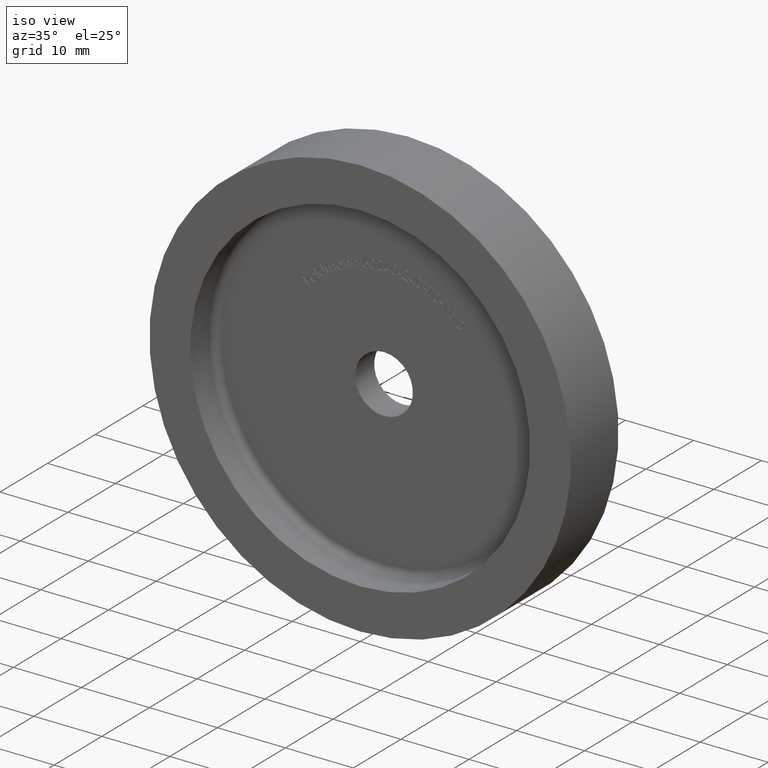
[diagram: clean part render]
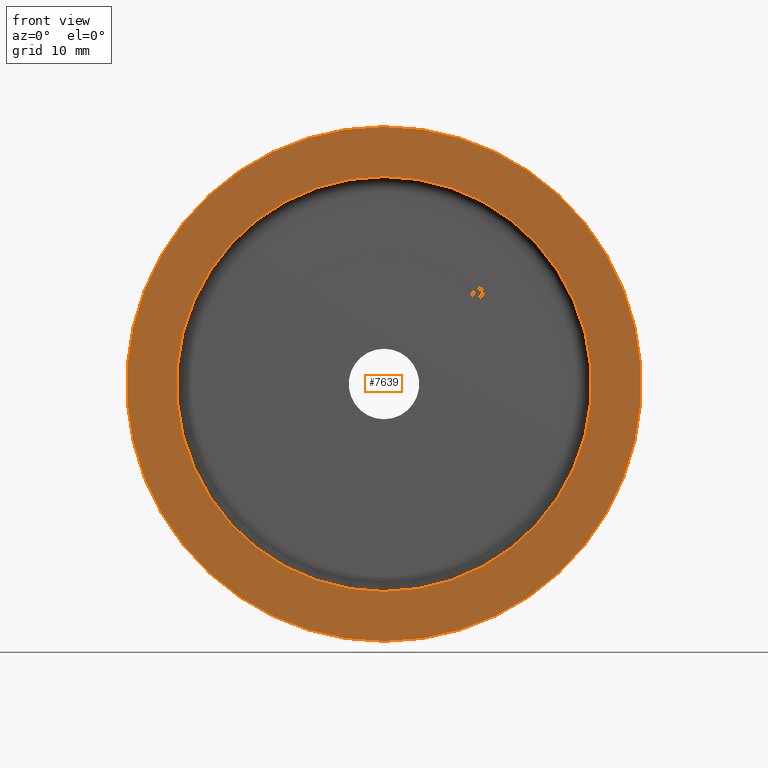
[diagram: tour spotlight — one face highlighted and labeled with its STEP entity id]
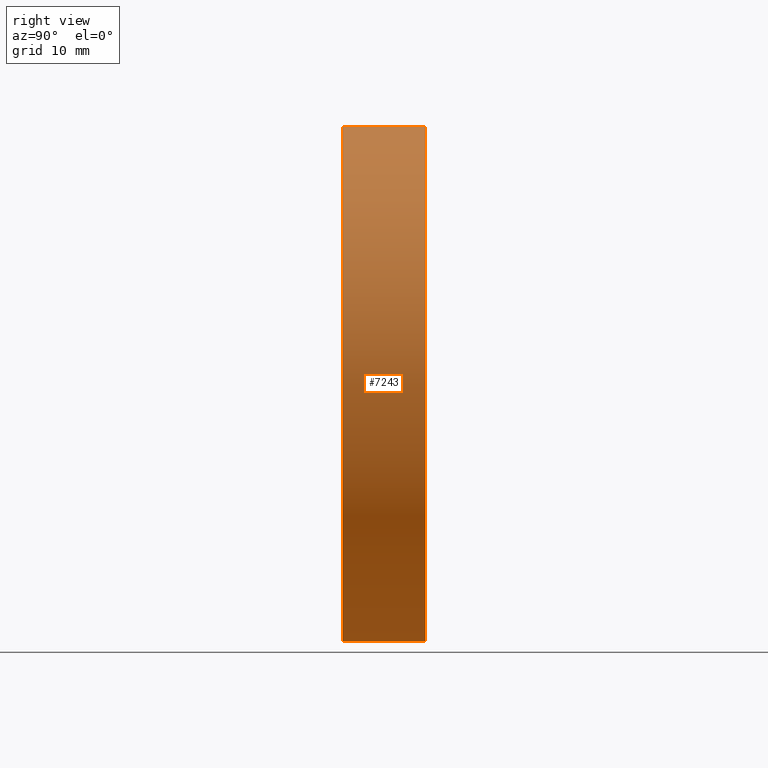
[diagram: tour spotlight — one face highlighted and labeled with its STEP entity id]
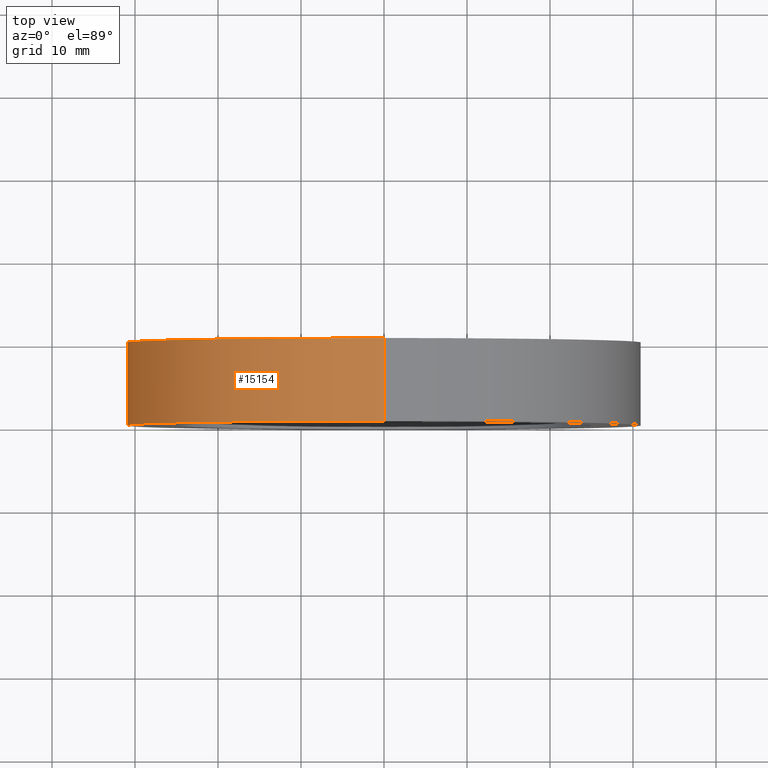
[diagram: tour spotlight — one face highlighted and labeled with its STEP entity id]
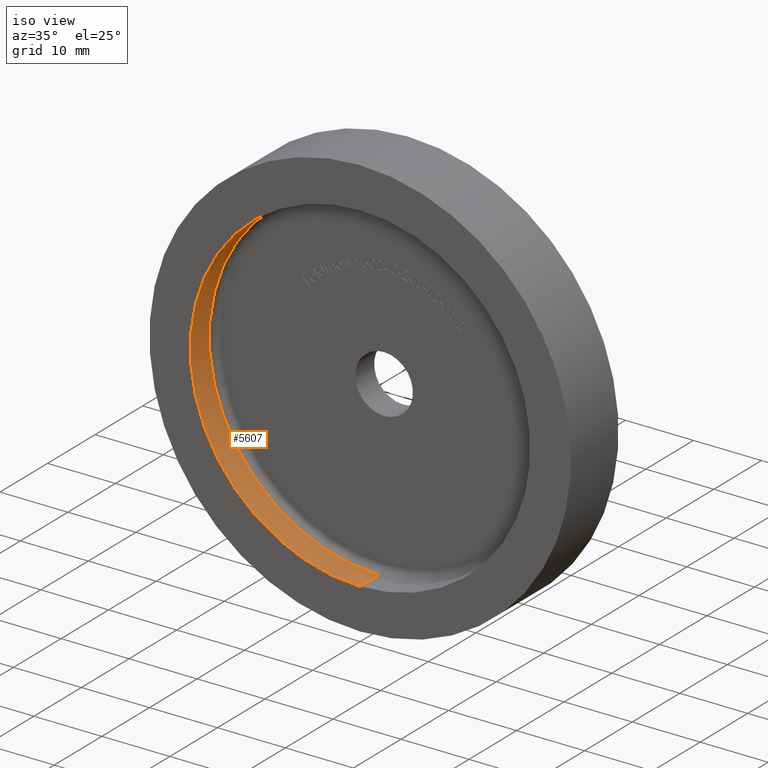
[diagram: tour spotlight — one face highlighted and labeled with its STEP entity id]
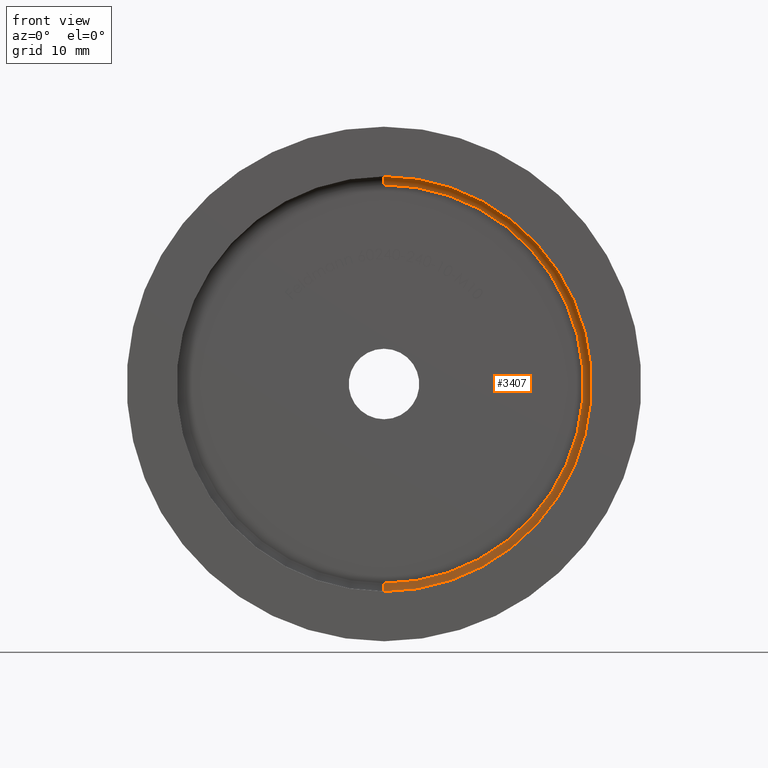
[diagram: tour spotlight — one face highlighted and labeled with its STEP entity id]
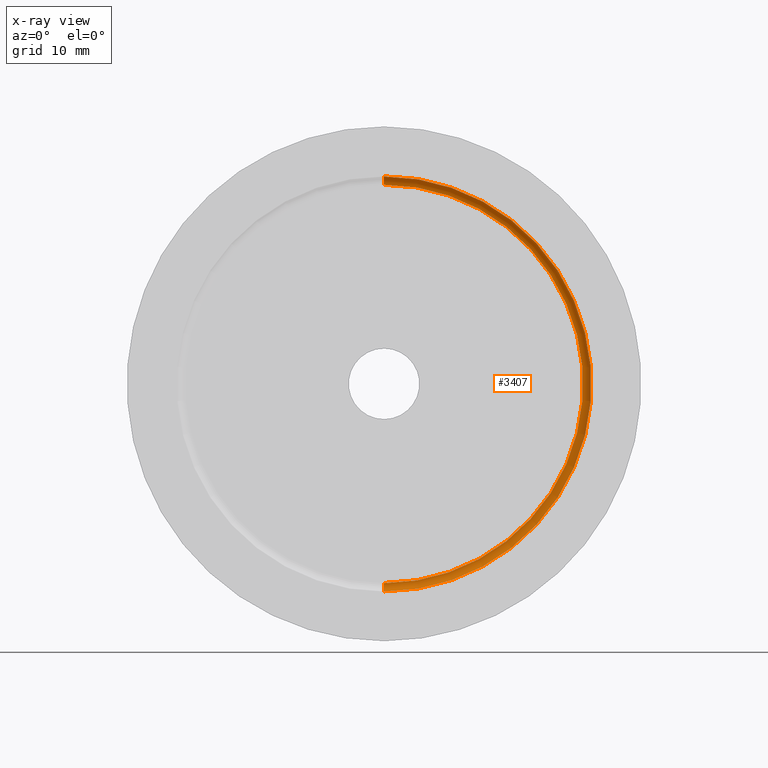
[diagram: x-ray of the same camera — body ghosted, this tour face saturated]
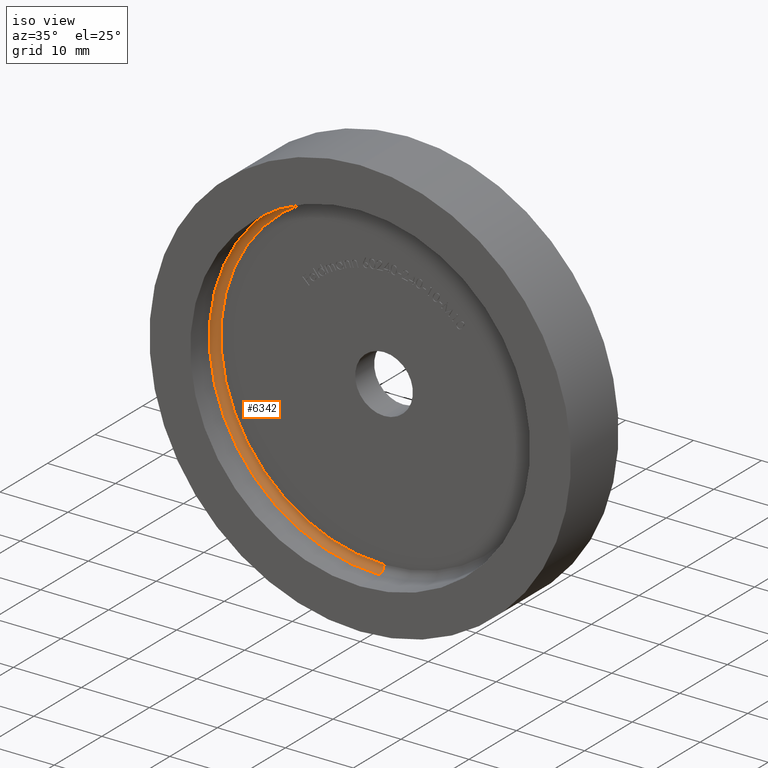
[diagram: tour spotlight — one face highlighted and labeled with its STEP entity id]
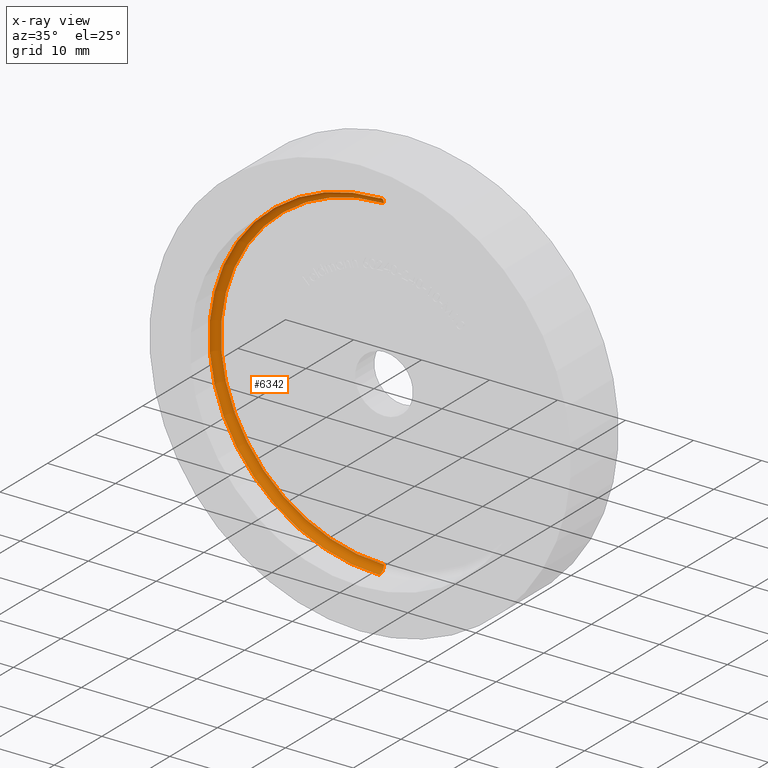
[diagram: x-ray of the same camera — body ghosted, this tour face saturated]
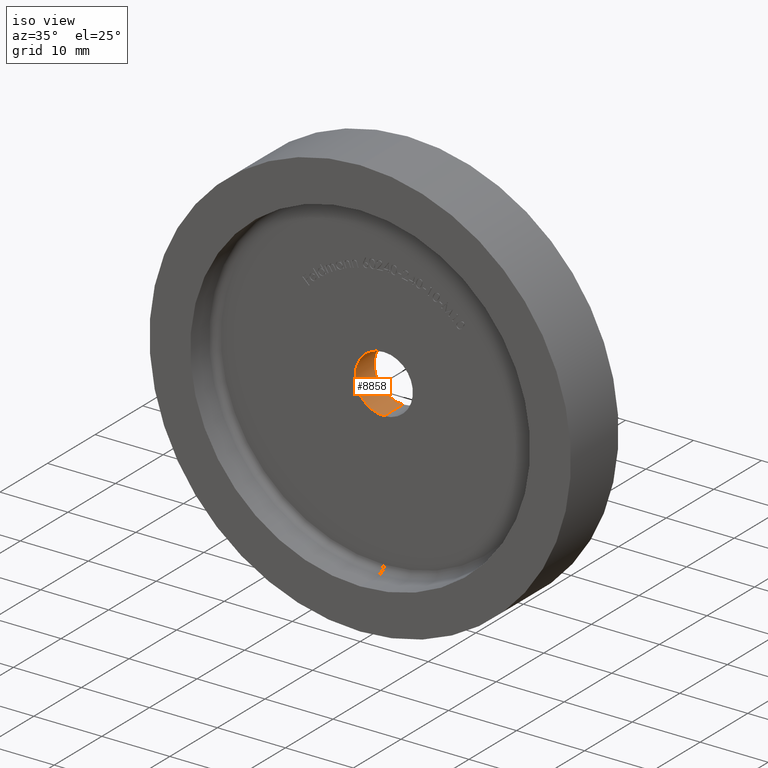
[diagram: tour spotlight — one face highlighted and labeled with its STEP entity id]
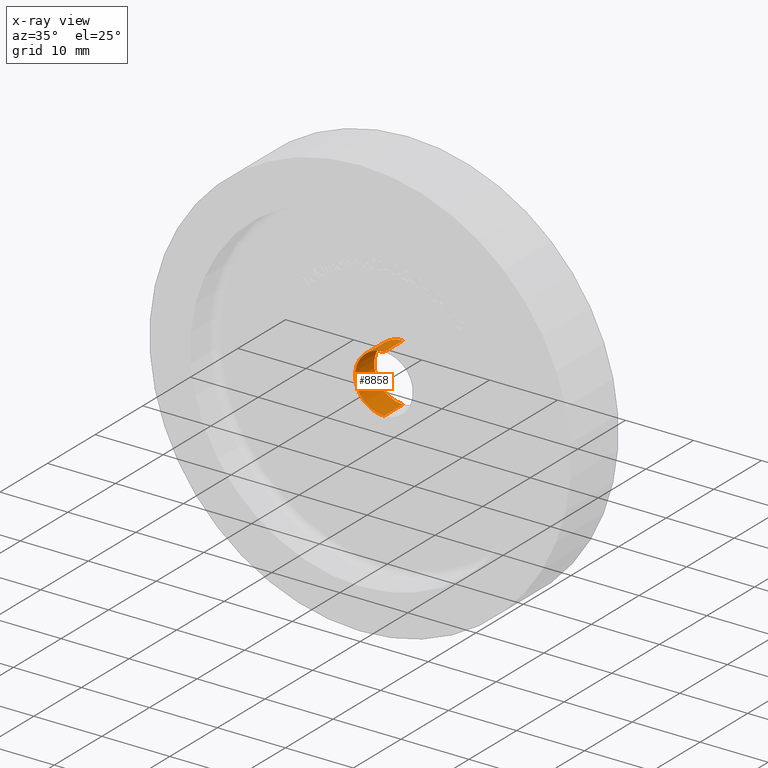
[diagram: x-ray of the same camera — body ghosted, this tour face saturated]
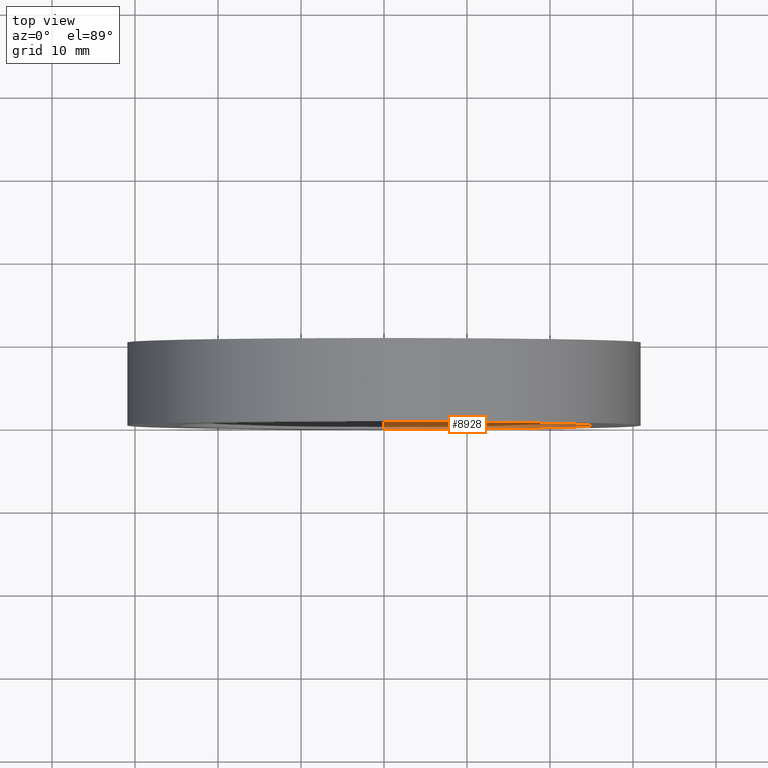
[diagram: tour spotlight — one face highlighted and labeled with its STEP entity id]
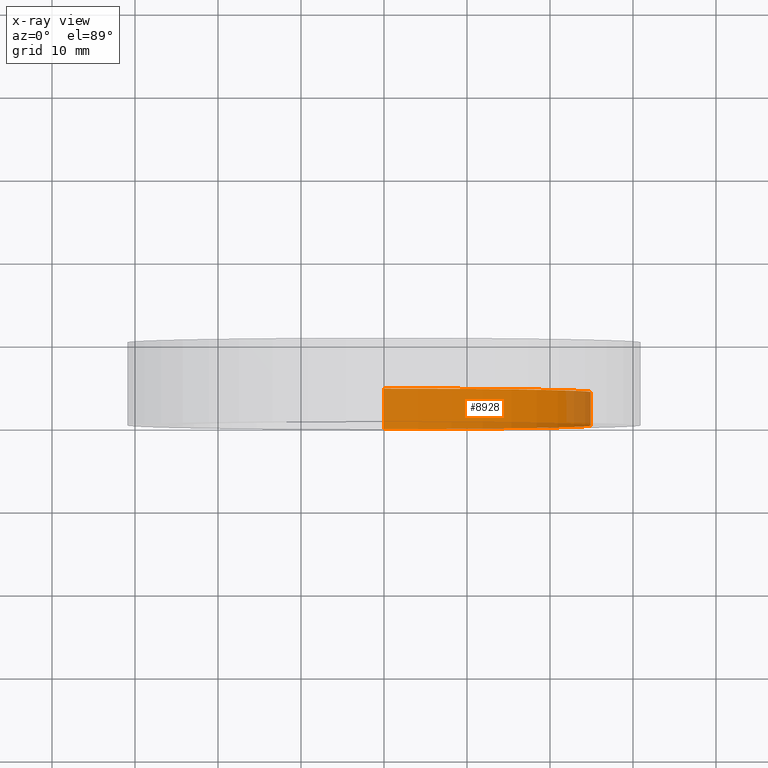
[diagram: x-ray of the same camera — body ghosted, this tour face saturated]
A machine part: a face-by-face anatomy tour. The part has 294 B-rep faces; the first image is the clean iso view, then the 8 largest visible faces are spotlighted one at a time (largest first), each with its STEP entity span.

Face 1 — front view, entity #7639. In plain terms, the highlighted planar face has unit normal (0, -1, 0).
Definition (entity closure, byte-faithful):
#293 = VERTEX_POINT ( 'NONE', #13969 ) ;
#400 = DIRECTION ( 'NONE',  ( -0.000000000000000000, 1.000000000000000000, -0.000000000000000000 ) ) ;
#1285 = DIRECTION ( 'NONE',  ( 0.000000000000000000, -1.000000000000000000, 0.000000000000000000 ) ) ;
#1495 = CIRCLE ( 'NONE', #15128, 31.00000000000000000 ) ;
#1511 = CARTESIAN_POINT ( 'NONE',  ( -8.499999999999998224, -1.881192818295456563E-15, 0.000000000000000000 ) ) ;
#1578 = EDGE_LOOP ( 'NONE', ( #12436, #14569 ) ) ;
#1798 = EDGE_LOOP ( 'NONE', ( #14485, #13140 ) ) ;
#3186 = DIRECTION ( 'NONE',  ( 0.000000000000000000, 0.000000000000000000, -1.000000000000000000 ) ) ;
#3241 = CIRCLE ( 'NONE', #11159, 25.00000000000000000 ) ;
#3550 = AXIS2_PLACEMENT_3D ( 'NONE', #7982, #5619, #3186 ) ;
#4384 = DIRECTION ( 'NONE',  ( 0.000000000000000000, -1.000000000000000000, 0.000000000000000000 ) ) ;
#5592 = AXIS2_PLACEMENT_3D ( 'NONE', #9009, #400, #9219 ) ;
#5619 = DIRECTION ( 'NONE',  ( 0.000000000000000000, -1.000000000000000000, 0.000000000000000000 ) ) ;
#5631 = CARTESIAN_POINT ( 'NONE',  ( 3.796405077356795115E-15, -3.469446951953614189E-15, -31.00000000000000000 ) ) ;
#6103 = AXIS2_PLACEMENT_3D ( 'NONE', #1511, #1285, #12487 ) ;
#6287 = EDGE_CURVE ( 'NONE', #16081, #13578, #10623, .T. ) ;
#7639 = ADVANCED_FACE ( 'NONE', ( #10261, #13563 ), #11125, .T. ) ;
#7982 = CARTESIAN_POINT ( 'NONE',  ( 0.000000000000000000, 0.000000000000000000, 0.000000000000000000 ) ) ;
#9009 = CARTESIAN_POINT ( 'NONE',  ( 0.000000000000000000, -3.469446951953614189E-15, 0.000000000000000000 ) ) ;
#9219 = DIRECTION ( 'NONE',  ( 0.000000000000000000, 0.000000000000000000, 1.000000000000000000 ) ) ;
#9318 = CARTESIAN_POINT ( 'NONE',  ( 0.000000000000000000, 0.000000000000000000, 0.000000000000000000 ) ) ;
#10261 = FACE_BOUND ( 'NONE', #1798, .T. ) ;
#10623 = CIRCLE ( 'NONE', #5592, 31.00000000000000000 ) ;
#11125 = PLANE ( 'NONE',  #6103 ) ;
#11159 = AXIS2_PLACEMENT_3D ( 'NONE', #9318, #4384, #14163 ) ;
#11748 = CARTESIAN_POINT ( 'NONE',  ( 0.000000000000000000, -3.469446951953614189E-15, 31.00000000000000000 ) ) ;
#12256 = CARTESIAN_POINT ( 'NONE',  ( 3.061616997868383043E-15, 0.000000000000000000, 25.00000000000000000 ) ) ;
#12436 = ORIENTED_EDGE ( 'NONE', *, *, #6287, .F. ) ;
#12487 = DIRECTION ( 'NONE',  ( 0.000000000000000000, -0.000000000000000000, -1.000000000000000000 ) ) ;
#12672 = EDGE_CURVE ( 'NONE', #293, #14156, #15943, .T. ) ;
#13047 = DIRECTION ( 'NONE',  ( 0.000000000000000000, 0.000000000000000000, 1.000000000000000000 ) ) ;
#13140 = ORIENTED_EDGE ( 'NONE', *, *, #15919, .F. ) ;
#13563 = FACE_OUTER_BOUND ( 'NONE', #1578, .T. ) ;
#13578 = VERTEX_POINT ( 'NONE', #5631 ) ;
#13969 = CARTESIAN_POINT ( 'NONE',  ( 0.000000000000000000, 0.000000000000000000, -25.00000000000000000 ) ) ;
#14125 = CARTESIAN_POINT ( 'NONE',  ( 0.000000000000000000, -3.469446951953614189E-15, 0.000000000000000000 ) ) ;
#14156 = VERTEX_POINT ( 'NONE', #12256 ) ;
#14163 = DIRECTION ( 'NONE',  ( 0.000000000000000000, 0.000000000000000000, -1.000000000000000000 ) ) ;
#14179 = DIRECTION ( 'NONE',  ( -0.000000000000000000, 1.000000000000000000, -0.000000000000000000 ) ) ;
#14485 = ORIENTED_EDGE ( 'NONE', *, *, #12672, .F. ) ;
#14569 = ORIENTED_EDGE ( 'NONE', *, *, #15459, .F. ) ;
#15128 = AXIS2_PLACEMENT_3D ( 'NONE', #14125, #14179, #13047 ) ;
#15459 = EDGE_CURVE ( 'NONE', #13578, #16081, #1495, .T. ) ;
#15919 = EDGE_CURVE ( 'NONE', #14156, #293, #3241, .T. ) ;
#15943 = CIRCLE ( 'NONE', #3550, 25.00000000000000000 ) ;
#16081 = VERTEX_POINT ( 'NONE', #11748 ) ;

Face 2 — right view, entity #7243. In plain terms, the highlighted cylindrical surface (partial cylindrical patch) has radius 31 mm, axis along (-0, 1, -0).
Definition (entity closure, byte-faithful):
#400 = DIRECTION ( 'NONE',  ( -0.000000000000000000, 1.000000000000000000, -0.000000000000000000 ) ) ;
#933 = LINE ( 'NONE', #14373, #10648 ) ;
#1413 = DIRECTION ( 'NONE',  ( -0.000000000000000000, 1.000000000000000000, -0.000000000000000000 ) ) ;
#1561 = AXIS2_PLACEMENT_3D ( 'NONE', #2120, #8447, #10919 ) ;
#2120 = CARTESIAN_POINT ( 'NONE',  ( 0.000000000000000000, 9.999999999999996447, 0.000000000000000000 ) ) ;
#3063 = LINE ( 'NONE', #5068, #5960 ) ;
#5068 = CARTESIAN_POINT ( 'NONE',  ( 3.796405077356795115E-15, 9.999999999999996447, -31.00000000000000000 ) ) ;
#5592 = AXIS2_PLACEMENT_3D ( 'NONE', #9009, #400, #9219 ) ;
#5631 = CARTESIAN_POINT ( 'NONE',  ( 3.796405077356795115E-15, -3.469446951953614189E-15, -31.00000000000000000 ) ) ;
#5866 = DIRECTION ( 'NONE',  ( -0.000000000000000000, 1.000000000000000000, -0.000000000000000000 ) ) ;
#5960 = VECTOR ( 'NONE', #1413, 1000.000000000000000 ) ;
#6287 = EDGE_CURVE ( 'NONE', #16081, #13578, #10623, .T. ) ;
#7243 = ADVANCED_FACE ( 'NONE', ( #15151 ), #11626, .T. ) ;
#8447 = DIRECTION ( 'NONE',  ( -0.000000000000000000, 1.000000000000000000, -0.000000000000000000 ) ) ;
#8504 = CARTESIAN_POINT ( 'NONE',  ( 3.796405077356795904E-15, 9.999999999999996447, -31.00000000000000711 ) ) ;
#9009 = CARTESIAN_POINT ( 'NONE',  ( 0.000000000000000000, -3.469446951953614189E-15, 0.000000000000000000 ) ) ;
#9099 = ORIENTED_EDGE ( 'NONE', *, *, #10803, .T. ) ;
#9219 = DIRECTION ( 'NONE',  ( 0.000000000000000000, 0.000000000000000000, 1.000000000000000000 ) ) ;
#9587 = EDGE_CURVE ( 'NONE', #10645, #10302, #10787, .T. ) ;
#10302 = VERTEX_POINT ( 'NONE', #8504 ) ;
#10623 = CIRCLE ( 'NONE', #5592, 31.00000000000000000 ) ;
#10645 = VERTEX_POINT ( 'NONE', #14248 ) ;
#10648 = VECTOR ( 'NONE', #13131, 1000.000000000000000 ) ;
#10787 = CIRCLE ( 'NONE', #1561, 31.00000000000000355 ) ;
#10803 = EDGE_CURVE ( 'NONE', #13578, #10302, #3063, .T. ) ;
#10826 = DIRECTION ( 'NONE',  ( 0.000000000000000000, 0.000000000000000000, 1.000000000000000000 ) ) ;
#10919 = DIRECTION ( 'NONE',  ( 0.000000000000000000, 0.000000000000000000, 1.000000000000000000 ) ) ;
#11550 = ORIENTED_EDGE ( 'NONE', *, *, #14365, .F. ) ;
#11626 = CYLINDRICAL_SURFACE ( 'NONE', #14449, 31.00000000000000000 ) ;
#11748 = CARTESIAN_POINT ( 'NONE',  ( 0.000000000000000000, -3.469446951953614189E-15, 31.00000000000000000 ) ) ;
#12649 = ORIENTED_EDGE ( 'NONE', *, *, #6287, .T. ) ;
#13131 = DIRECTION ( 'NONE',  ( -0.000000000000000000, 1.000000000000000000, -0.000000000000000000 ) ) ;
#13171 = CARTESIAN_POINT ( 'NONE',  ( 0.000000000000000000, 9.999999999999996447, 0.000000000000000000 ) ) ;
#13545 = ORIENTED_EDGE ( 'NONE', *, *, #9587, .F. ) ;
#13578 = VERTEX_POINT ( 'NONE', #5631 ) ;
#13703 = EDGE_LOOP ( 'NONE', ( #12649, #9099, #13545, #11550 ) ) ;
#14248 = CARTESIAN_POINT ( 'NONE',  ( 0.000000000000000000, 9.999999999999996447, 31.00000000000000355 ) ) ;
#14365 = EDGE_CURVE ( 'NONE', #16081, #10645, #933, .T. ) ;
#14373 = CARTESIAN_POINT ( 'NONE',  ( 0.000000000000000000, 9.999999999999996447, 31.00000000000000000 ) ) ;
#14449 = AXIS2_PLACEMENT_3D ( 'NONE', #13171, #5866, #10826 ) ;
#15151 = FACE_OUTER_BOUND ( 'NONE', #13703, .T. ) ;
#16081 = VERTEX_POINT ( 'NONE', #11748 ) ;

Face 3 — top view, entity #15154. In plain terms, the highlighted cylindrical surface (partial cylindrical patch) has radius 31 mm, axis along (-0, 1, -0).
Definition (entity closure, byte-faithful):
#170 = ORIENTED_EDGE ( 'NONE', *, *, #14365, .T. ) ;
#185 = ORIENTED_EDGE ( 'NONE', *, *, #10803, .F. ) ;
#933 = LINE ( 'NONE', #14373, #10648 ) ;
#1413 = DIRECTION ( 'NONE',  ( -0.000000000000000000, 1.000000000000000000, -0.000000000000000000 ) ) ;
#1495 = CIRCLE ( 'NONE', #15128, 31.00000000000000000 ) ;
#3063 = LINE ( 'NONE', #5068, #5960 ) ;
#3854 = ORIENTED_EDGE ( 'NONE', *, *, #15459, .T. ) ;
#4126 = AXIS2_PLACEMENT_3D ( 'NONE', #14473, #13416, #10905 ) ;
#4224 = ORIENTED_EDGE ( 'NONE', *, *, #7932, .F. ) ;
#4463 = AXIS2_PLACEMENT_3D ( 'NONE', #15444, #5636, #10489 ) ;
#5068 = CARTESIAN_POINT ( 'NONE',  ( 3.796405077356795115E-15, 9.999999999999996447, -31.00000000000000000 ) ) ;
#5565 = CYLINDRICAL_SURFACE ( 'NONE', #4463, 31.00000000000000000 ) ;
#5631 = CARTESIAN_POINT ( 'NONE',  ( 3.796405077356795115E-15, -3.469446951953614189E-15, -31.00000000000000000 ) ) ;
#5636 = DIRECTION ( 'NONE',  ( -0.000000000000000000, 1.000000000000000000, -0.000000000000000000 ) ) ;
#5960 = VECTOR ( 'NONE', #1413, 1000.000000000000000 ) ;
#7932 = EDGE_CURVE ( 'NONE', #10302, #10645, #16101, .T. ) ;
#8504 = CARTESIAN_POINT ( 'NONE',  ( 3.796405077356795904E-15, 9.999999999999996447, -31.00000000000000711 ) ) ;
#10302 = VERTEX_POINT ( 'NONE', #8504 ) ;
#10489 = DIRECTION ( 'NONE',  ( 0.000000000000000000, 0.000000000000000000, 1.000000000000000000 ) ) ;
#10645 = VERTEX_POINT ( 'NONE', #14248 ) ;
#10648 = VECTOR ( 'NONE', #13131, 1000.000000000000000 ) ;
#10803 = EDGE_CURVE ( 'NONE', #13578, #10302, #3063, .T. ) ;
#10905 = DIRECTION ( 'NONE',  ( 0.000000000000000000, 0.000000000000000000, 1.000000000000000000 ) ) ;
#11748 = CARTESIAN_POINT ( 'NONE',  ( 0.000000000000000000, -3.469446951953614189E-15, 31.00000000000000000 ) ) ;
#12036 = EDGE_LOOP ( 'NONE', ( #185, #3854, #170, #4224 ) ) ;
#13047 = DIRECTION ( 'NONE',  ( 0.000000000000000000, 0.000000000000000000, 1.000000000000000000 ) ) ;
#13131 = DIRECTION ( 'NONE',  ( -0.000000000000000000, 1.000000000000000000, -0.000000000000000000 ) ) ;
#13416 = DIRECTION ( 'NONE',  ( -0.000000000000000000, 1.000000000000000000, -0.000000000000000000 ) ) ;
#13578 = VERTEX_POINT ( 'NONE', #5631 ) ;
#14125 = CARTESIAN_POINT ( 'NONE',  ( 0.000000000000000000, -3.469446951953614189E-15, 0.000000000000000000 ) ) ;
#14179 = DIRECTION ( 'NONE',  ( -0.000000000000000000, 1.000000000000000000, -0.000000000000000000 ) ) ;
#14248 = CARTESIAN_POINT ( 'NONE',  ( 0.000000000000000000, 9.999999999999996447, 31.00000000000000355 ) ) ;
#14365 = EDGE_CURVE ( 'NONE', #16081, #10645, #933, .T. ) ;
#14373 = CARTESIAN_POINT ( 'NONE',  ( 0.000000000000000000, 9.999999999999996447, 31.00000000000000000 ) ) ;
#14473 = CARTESIAN_POINT ( 'NONE',  ( 0.000000000000000000, 9.999999999999996447, 0.000000000000000000 ) ) ;
#15128 = AXIS2_PLACEMENT_3D ( 'NONE', #14125, #14179, #13047 ) ;
#15154 = ADVANCED_FACE ( 'NONE', ( #15318 ), #5565, .T. ) ;
#15318 = FACE_OUTER_BOUND ( 'NONE', #12036, .T. ) ;
#15444 = CARTESIAN_POINT ( 'NONE',  ( 0.000000000000000000, 9.999999999999996447, 0.000000000000000000 ) ) ;
#15459 = EDGE_CURVE ( 'NONE', #13578, #16081, #1495, .T. ) ;
#16081 = VERTEX_POINT ( 'NONE', #11748 ) ;
#16101 = CIRCLE ( 'NONE', #4126, 31.00000000000000355 ) ;

Face 4 — iso view, entity #5607. In plain terms, the highlighted cylindrical surface (partial cylindrical patch) has radius 25 mm, axis along (-0, -1, -0).
Definition (entity closure, byte-faithful):
#189 = ORIENTED_EDGE ( 'NONE', *, *, #15919, .T. ) ;
#253 = CARTESIAN_POINT ( 'NONE',  ( 0.000000000000000000, 80.71067811865475505, 0.000000000000000000 ) ) ;
#293 = VERTEX_POINT ( 'NONE', #13969 ) ;
#464 = LINE ( 'NONE', #11802, #2024 ) ;
#659 = DIRECTION ( 'NONE',  ( -0.000000000000000000, -1.000000000000000000, -0.000000000000000000 ) ) ;
#743 = CARTESIAN_POINT ( 'NONE',  ( 3.061616997868383043E-15, 4.000000000000003553, 25.00000000000000000 ) ) ;
#1393 = DIRECTION ( 'NONE',  ( -0.000000000000000000, -1.000000000000000000, -0.000000000000000000 ) ) ;
#1696 = CYLINDRICAL_SURFACE ( 'NONE', #9228, 25.00000000000000000 ) ;
#2024 = VECTOR ( 'NONE', #659, 1000.000000000000000 ) ;
#2335 = ORIENTED_EDGE ( 'NONE', *, *, #10164, .F. ) ;
#3241 = CIRCLE ( 'NONE', #11159, 25.00000000000000000 ) ;
#3269 = CIRCLE ( 'NONE', #7289, 25.00000000000000000 ) ;
#3329 = ORIENTED_EDGE ( 'NONE', *, *, #10445, .T. ) ;
#4009 = CARTESIAN_POINT ( 'NONE',  ( 0.000000000000000000, 4.000000000000003553, -25.00000000000000000 ) ) ;
#4178 = DIRECTION ( 'NONE',  ( 0.000000000000000000, 0.000000000000000000, -1.000000000000000000 ) ) ;
#4384 = DIRECTION ( 'NONE',  ( 0.000000000000000000, -1.000000000000000000, 0.000000000000000000 ) ) ;
#4692 = EDGE_CURVE ( 'NONE', #14400, #14156, #464, .T. ) ;
#5101 = VECTOR ( 'NONE', #1393, 1000.000000000000000 ) ;
#5607 = ADVANCED_FACE ( 'NONE', ( #12206 ), #1696, .F. ) ;
#6544 = DIRECTION ( 'NONE',  ( -0.000000000000000000, -1.000000000000000000, -0.000000000000000000 ) ) ;
#7289 = AXIS2_PLACEMENT_3D ( 'NONE', #9524, #13441, #8415 ) ;
#7805 = ORIENTED_EDGE ( 'NONE', *, *, #4692, .T. ) ;
#7869 = EDGE_LOOP ( 'NONE', ( #3329, #7805, #189, #2335 ) ) ;
#8415 = DIRECTION ( 'NONE',  ( 0.000000000000000000, 0.000000000000000000, 1.000000000000000000 ) ) ;
#9228 = AXIS2_PLACEMENT_3D ( 'NONE', #253, #6544, #4178 ) ;
#9318 = CARTESIAN_POINT ( 'NONE',  ( 0.000000000000000000, 0.000000000000000000, 0.000000000000000000 ) ) ;
#9524 = CARTESIAN_POINT ( 'NONE',  ( 0.000000000000000000, 4.000000000000003553, 0.000000000000000000 ) ) ;
#10164 = EDGE_CURVE ( 'NONE', #10872, #293, #13702, .T. ) ;
#10445 = EDGE_CURVE ( 'NONE', #10872, #14400, #3269, .T. ) ;
#10872 = VERTEX_POINT ( 'NONE', #4009 ) ;
#11159 = AXIS2_PLACEMENT_3D ( 'NONE', #9318, #4384, #14163 ) ;
#11802 = CARTESIAN_POINT ( 'NONE',  ( 3.061616997868383043E-15, 80.71067811865475505, 25.00000000000000000 ) ) ;
#12206 = FACE_OUTER_BOUND ( 'NONE', #7869, .T. ) ;
#12256 = CARTESIAN_POINT ( 'NONE',  ( 3.061616997868383043E-15, 0.000000000000000000, 25.00000000000000000 ) ) ;
#12535 = CARTESIAN_POINT ( 'NONE',  ( 0.000000000000000000, 80.71067811865475505, -25.00000000000000000 ) ) ;
#13441 = DIRECTION ( 'NONE',  ( -0.000000000000000000, 1.000000000000000000, -0.000000000000000000 ) ) ;
#13702 = LINE ( 'NONE', #12535, #5101 ) ;
#13969 = CARTESIAN_POINT ( 'NONE',  ( 0.000000000000000000, 0.000000000000000000, -25.00000000000000000 ) ) ;
#14156 = VERTEX_POINT ( 'NONE', #12256 ) ;
#14163 = DIRECTION ( 'NONE',  ( 0.000000000000000000, 0.000000000000000000, -1.000000000000000000 ) ) ;
#14400 = VERTEX_POINT ( 'NONE', #743 ) ;
#15919 = EDGE_CURVE ( 'NONE', #14156, #293, #3241, .T. ) ;

Face 5 — front view, entity #3407. An x-ray twin of the same camera follows (body ghosted, this face saturated) — the face is partly hidden behind the body. In plain terms, the highlighted toroidal blend (fillet) surface has major radius 24 mm and minor (blend) radius 1 mm.
Definition (entity closure, byte-faithful):
#381 = DIRECTION ( 'NONE',  ( 0.000000000000000000, 0.000000000000000000, 1.000000000000000000 ) ) ;
#512 = ORIENTED_EDGE ( 'NONE', *, *, #14906, .F. ) ;
#743 = CARTESIAN_POINT ( 'NONE',  ( 3.061616997868383043E-15, 4.000000000000003553, 25.00000000000000000 ) ) ;
#898 = CARTESIAN_POINT ( 'NONE',  ( 2.939152317953647894E-15, 4.000000000000003553, -24.00000000000000000 ) ) ;
#959 = DIRECTION ( 'NONE',  ( 1.224646799147353454E-16, 0.000000000000000000, -1.000000000000000000 ) ) ;
#2548 = CARTESIAN_POINT ( 'NONE',  ( 0.000000000000000000, 4.000000000000003553, 24.00000000000000000 ) ) ;
#2801 = CARTESIAN_POINT ( 'NONE',  ( 3.000384657911015469E-15, 4.999999999999996447, -24.00000000000000000 ) ) ;
#3089 = CARTESIAN_POINT ( 'NONE',  ( 0.000000000000000000, 4.000000000000003553, 0.000000000000000000 ) ) ;
#3407 = ADVANCED_FACE ( 'NONE', ( #8865 ), #6349, .F. ) ;
#3581 = AXIS2_PLACEMENT_3D ( 'NONE', #6498, #5288, #381 ) ;
#3631 = CARTESIAN_POINT ( 'NONE',  ( 0.000000000000000000, 4.999999999999996447, 24.00000000000000000 ) ) ;
#4009 = CARTESIAN_POINT ( 'NONE',  ( 0.000000000000000000, 4.000000000000003553, -25.00000000000000000 ) ) ;
#4242 = AXIS2_PLACEMENT_3D ( 'NONE', #2548, #7516, #13723 ) ;
#5288 = DIRECTION ( 'NONE',  ( -0.000000000000000000, 1.000000000000000000, -0.000000000000000000 ) ) ;
#5737 = CIRCLE ( 'NONE', #10996, 25.00000000000000000 ) ;
#6031 = CARTESIAN_POINT ( 'NONE',  ( 0.000000000000000000, 4.999999999999996447, 0.000000000000000000 ) ) ;
#6349 = TOROIDAL_SURFACE ( 'NONE', #3581, 24.00000000000000000, 1.000000000000000000 ) ;
#6485 = EDGE_CURVE ( 'NONE', #14400, #10872, #5737, .T. ) ;
#6498 = CARTESIAN_POINT ( 'NONE',  ( 0.000000000000000000, 4.000000000000003553, 0.000000000000000000 ) ) ;
#7287 = DIRECTION ( 'NONE',  ( 0.000000000000000000, -1.000000000000000000, 0.000000000000000000 ) ) ;
#7516 = DIRECTION ( 'NONE',  ( -1.000000000000000000, 0.000000000000000000, 0.000000000000000000 ) ) ;
#8292 = CIRCLE ( 'NONE', #10958, 24.00000000000000000 ) ;
#8865 = FACE_OUTER_BOUND ( 'NONE', #8879, .T. ) ;
#8879 = EDGE_LOOP ( 'NONE', ( #12990, #13077, #8948, #512 ) ) ;
#8948 = ORIENTED_EDGE ( 'NONE', *, *, #10100, .T. ) ;
#10100 = EDGE_CURVE ( 'NONE', #14400, #14907, #13516, .T. ) ;
#10872 = VERTEX_POINT ( 'NONE', #4009 ) ;
#10958 = AXIS2_PLACEMENT_3D ( 'NONE', #6031, #7287, #13446 ) ;
#10996 = AXIS2_PLACEMENT_3D ( 'NONE', #3089, #15540, #11933 ) ;
#11933 = DIRECTION ( 'NONE',  ( 0.000000000000000000, 0.000000000000000000, 1.000000000000000000 ) ) ;
#12883 = EDGE_CURVE ( 'NONE', #10872, #14293, #13413, .T. ) ;
#12990 = ORIENTED_EDGE ( 'NONE', *, *, #12883, .F. ) ;
#13038 = AXIS2_PLACEMENT_3D ( 'NONE', #898, #13346, #959 ) ;
#13077 = ORIENTED_EDGE ( 'NONE', *, *, #6485, .F. ) ;
#13346 = DIRECTION ( 'NONE',  ( 1.000000000000000000, 0.000000000000000000, 1.224646799147353207E-16 ) ) ;
#13413 = CIRCLE ( 'NONE', #13038, 1.000000000000000888 ) ;
#13446 = DIRECTION ( 'NONE',  ( 0.000000000000000000, 0.000000000000000000, 1.000000000000000000 ) ) ;
#13516 = CIRCLE ( 'NONE', #4242, 1.000000000000000888 ) ;
#13723 = DIRECTION ( 'NONE',  ( 0.000000000000000000, 0.000000000000000000, 1.000000000000000000 ) ) ;
#14293 = VERTEX_POINT ( 'NONE', #2801 ) ;
#14400 = VERTEX_POINT ( 'NONE', #743 ) ;
#14906 = EDGE_CURVE ( 'NONE', #14293, #14907, #8292, .T. ) ;
#14907 = VERTEX_POINT ( 'NONE', #3631 ) ;
#15540 = DIRECTION ( 'NONE',  ( -0.000000000000000000, 1.000000000000000000, -0.000000000000000000 ) ) ;

Face 6 — iso view, entity #6342. An x-ray twin of the same camera follows (body ghosted, this face saturated) — the face is partly hidden behind the body. In plain terms, the highlighted toroidal blend (fillet) surface has major radius 24 mm and minor (blend) radius 1 mm.
Definition (entity closure, byte-faithful):
#743 = CARTESIAN_POINT ( 'NONE',  ( 3.061616997868383043E-15, 4.000000000000003553, 25.00000000000000000 ) ) ;
#898 = CARTESIAN_POINT ( 'NONE',  ( 2.939152317953647894E-15, 4.000000000000003553, -24.00000000000000000 ) ) ;
#959 = DIRECTION ( 'NONE',  ( 1.224646799147353454E-16, 0.000000000000000000, -1.000000000000000000 ) ) ;
#1166 = DIRECTION ( 'NONE',  ( 0.000000000000000000, -1.000000000000000000, 0.000000000000000000 ) ) ;
#1317 = EDGE_LOOP ( 'NONE', ( #11503, #13167, #14500, #6922 ) ) ;
#2548 = CARTESIAN_POINT ( 'NONE',  ( 0.000000000000000000, 4.000000000000003553, 24.00000000000000000 ) ) ;
#2801 = CARTESIAN_POINT ( 'NONE',  ( 3.000384657911015469E-15, 4.999999999999996447, -24.00000000000000000 ) ) ;
#2857 = TOROIDAL_SURFACE ( 'NONE', #10506, 24.00000000000000000, 1.000000000000000000 ) ;
#3235 = FACE_OUTER_BOUND ( 'NONE', #1317, .T. ) ;
#3269 = CIRCLE ( 'NONE', #7289, 25.00000000000000000 ) ;
#3631 = CARTESIAN_POINT ( 'NONE',  ( 0.000000000000000000, 4.999999999999996447, 24.00000000000000000 ) ) ;
#4009 = CARTESIAN_POINT ( 'NONE',  ( 0.000000000000000000, 4.000000000000003553, -25.00000000000000000 ) ) ;
#4206 = CARTESIAN_POINT ( 'NONE',  ( 0.000000000000000000, 4.000000000000003553, 0.000000000000000000 ) ) ;
#4242 = AXIS2_PLACEMENT_3D ( 'NONE', #2548, #7516, #13723 ) ;
#4754 = DIRECTION ( 'NONE',  ( 0.000000000000000000, 0.000000000000000000, 1.000000000000000000 ) ) ;
#6187 = CARTESIAN_POINT ( 'NONE',  ( 0.000000000000000000, 4.999999999999996447, 0.000000000000000000 ) ) ;
#6342 = ADVANCED_FACE ( 'NONE', ( #3235 ), #2857, .F. ) ;
#6572 = AXIS2_PLACEMENT_3D ( 'NONE', #6187, #1166, #4754 ) ;
#6922 = ORIENTED_EDGE ( 'NONE', *, *, #10100, .F. ) ;
#7289 = AXIS2_PLACEMENT_3D ( 'NONE', #9524, #13441, #8415 ) ;
#7516 = DIRECTION ( 'NONE',  ( -1.000000000000000000, 0.000000000000000000, 0.000000000000000000 ) ) ;
#8415 = DIRECTION ( 'NONE',  ( 0.000000000000000000, 0.000000000000000000, 1.000000000000000000 ) ) ;
#9524 = CARTESIAN_POINT ( 'NONE',  ( 0.000000000000000000, 4.000000000000003553, 0.000000000000000000 ) ) ;
#10100 = EDGE_CURVE ( 'NONE', #14400, #14907, #13516, .T. ) ;
#10445 = EDGE_CURVE ( 'NONE', #10872, #14400, #3269, .T. ) ;
#10506 = AXIS2_PLACEMENT_3D ( 'NONE', #4206, #12931, #11623 ) ;
#10872 = VERTEX_POINT ( 'NONE', #4009 ) ;
#11503 = ORIENTED_EDGE ( 'NONE', *, *, #10445, .F. ) ;
#11623 = DIRECTION ( 'NONE',  ( 0.000000000000000000, 0.000000000000000000, 1.000000000000000000 ) ) ;
#12883 = EDGE_CURVE ( 'NONE', #10872, #14293, #13413, .T. ) ;
#12931 = DIRECTION ( 'NONE',  ( -0.000000000000000000, 1.000000000000000000, -0.000000000000000000 ) ) ;
#13029 = EDGE_CURVE ( 'NONE', #14907, #14293, #15153, .T. ) ;
#13038 = AXIS2_PLACEMENT_3D ( 'NONE', #898, #13346, #959 ) ;
#13167 = ORIENTED_EDGE ( 'NONE', *, *, #12883, .T. ) ;
#13346 = DIRECTION ( 'NONE',  ( 1.000000000000000000, 0.000000000000000000, 1.224646799147353207E-16 ) ) ;
#13413 = CIRCLE ( 'NONE', #13038, 1.000000000000000888 ) ;
#13441 = DIRECTION ( 'NONE',  ( -0.000000000000000000, 1.000000000000000000, -0.000000000000000000 ) ) ;
#13516 = CIRCLE ( 'NONE', #4242, 1.000000000000000888 ) ;
#13723 = DIRECTION ( 'NONE',  ( 0.000000000000000000, 0.000000000000000000, 1.000000000000000000 ) ) ;
#14293 = VERTEX_POINT ( 'NONE', #2801 ) ;
#14400 = VERTEX_POINT ( 'NONE', #743 ) ;
#14500 = ORIENTED_EDGE ( 'NONE', *, *, #13029, .F. ) ;
#14907 = VERTEX_POINT ( 'NONE', #3631 ) ;
#15153 = CIRCLE ( 'NONE', #6572, 24.00000000000000000 ) ;

Face 7 — iso view, entity #8858. An x-ray twin of the same camera follows (body ghosted, this face saturated) — the face is partly hidden behind the body. In plain terms, the highlighted cylindrical surface (edge-blend (fillet) strip) has radius 4.25 mm, axis along (-0, 1, -0).
Definition (entity closure, byte-faithful):
#284 = DIRECTION ( 'NONE',  ( -0.000000000000000000, 1.000000000000000000, -0.000000000000000000 ) ) ;
#560 = ORIENTED_EDGE ( 'NONE', *, *, #8473, .T. ) ;
#567 = VECTOR ( 'NONE', #10942, 1000.000000000000000 ) ;
#710 = VERTEX_POINT ( 'NONE', #8223 ) ;
#791 = CARTESIAN_POINT ( 'NONE',  ( 0.000000000000000000, 9.999999999999996447, 4.249999999999991118 ) ) ;
#1141 = CARTESIAN_POINT ( 'NONE',  ( 5.204748896376239852E-16, 4.999999999999996447, -4.249999999999991118 ) ) ;
#1590 = DIRECTION ( 'NONE',  ( -0.000000000000000000, 1.000000000000000000, -0.000000000000000000 ) ) ;
#3723 = CARTESIAN_POINT ( 'NONE',  ( 0.000000000000000000, 8.999999999999996447, 0.000000000000000000 ) ) ;
#3819 = EDGE_LOOP ( 'NONE', ( #8718, #560, #5546, #15040 ) ) ;
#4849 = AXIS2_PLACEMENT_3D ( 'NONE', #15130, #284, #15294 ) ;
#5122 = CARTESIAN_POINT ( 'NONE',  ( 5.204748896376239852E-16, 9.999999999999996447, -4.249999999999991118 ) ) ;
#5546 = ORIENTED_EDGE ( 'NONE', *, *, #7101, .T. ) ;
#5653 = DIRECTION ( 'NONE',  ( 0.000000000000000000, 0.000000000000000000, 1.000000000000000000 ) ) ;
#6044 = AXIS2_PLACEMENT_3D ( 'NONE', #13113, #14198, #5653 ) ;
#6384 = LINE ( 'NONE', #791, #567 ) ;
#7101 = EDGE_CURVE ( 'NONE', #710, #11473, #13010, .T. ) ;
#8223 = CARTESIAN_POINT ( 'NONE',  ( 5.204748896376239852E-16, 8.999999999999996447, -4.249999999999991118 ) ) ;
#8473 = EDGE_CURVE ( 'NONE', #15746, #710, #14547, .T. ) ;
#8495 = CARTESIAN_POINT ( 'NONE',  ( 0.000000000000000000, 8.999999999999996447, 4.249999999999991118 ) ) ;
#8516 = AXIS2_PLACEMENT_3D ( 'NONE', #3723, #16088, #8601 ) ;
#8601 = DIRECTION ( 'NONE',  ( 0.000000000000000000, 0.000000000000000000, 1.000000000000000000 ) ) ;
#8718 = ORIENTED_EDGE ( 'NONE', *, *, #12588, .T. ) ;
#8858 = ADVANCED_FACE ( 'NONE', ( #13310 ), #9400, .F. ) ;
#9400 = CYLINDRICAL_SURFACE ( 'NONE', #4849, 4.249999999999991118 ) ;
#10468 = VECTOR ( 'NONE', #1590, 1000.000000000000000 ) ;
#10942 = DIRECTION ( 'NONE',  ( -0.000000000000000000, 1.000000000000000000, -0.000000000000000000 ) ) ;
#11473 = VERTEX_POINT ( 'NONE', #8495 ) ;
#12588 = EDGE_CURVE ( 'NONE', #13357, #15746, #15963, .T. ) ;
#12839 = EDGE_CURVE ( 'NONE', #13357, #11473, #6384, .T. ) ;
#13010 = CIRCLE ( 'NONE', #8516, 4.249999999999991118 ) ;
#13113 = CARTESIAN_POINT ( 'NONE',  ( 0.000000000000000000, 4.999999999999996447, 0.000000000000000000 ) ) ;
#13310 = FACE_OUTER_BOUND ( 'NONE', #3819, .T. ) ;
#13357 = VERTEX_POINT ( 'NONE', #14446 ) ;
#14198 = DIRECTION ( 'NONE',  ( 0.000000000000000000, -1.000000000000000000, 0.000000000000000000 ) ) ;
#14446 = CARTESIAN_POINT ( 'NONE',  ( 0.000000000000000000, 4.999999999999996447, 4.249999999999991118 ) ) ;
#14547 = LINE ( 'NONE', #5122, #10468 ) ;
#15040 = ORIENTED_EDGE ( 'NONE', *, *, #12839, .F. ) ;
#15130 = CARTESIAN_POINT ( 'NONE',  ( 0.000000000000000000, 9.999999999999996447, 0.000000000000000000 ) ) ;
#15294 = DIRECTION ( 'NONE',  ( 0.000000000000000000, 0.000000000000000000, 1.000000000000000000 ) ) ;
#15746 = VERTEX_POINT ( 'NONE', #1141 ) ;
#15963 = CIRCLE ( 'NONE', #6044, 4.249999999999991118 ) ;
#16088 = DIRECTION ( 'NONE',  ( 0.000000000000000000, 1.000000000000000000, 0.000000000000000000 ) ) ;

Face 8 — top view, entity #8928. An x-ray twin of the same camera follows (body ghosted, this face saturated) — the face is partly hidden behind the body. In plain terms, the highlighted cylindrical surface (partial cylindrical patch) has radius 25 mm, axis along (-0, -1, -0).
Definition (entity closure, byte-faithful):
#293 = VERTEX_POINT ( 'NONE', #13969 ) ;
#464 = LINE ( 'NONE', #11802, #2024 ) ;
#659 = DIRECTION ( 'NONE',  ( -0.000000000000000000, -1.000000000000000000, -0.000000000000000000 ) ) ;
#743 = CARTESIAN_POINT ( 'NONE',  ( 3.061616997868383043E-15, 4.000000000000003553, 25.00000000000000000 ) ) ;
#1393 = DIRECTION ( 'NONE',  ( -0.000000000000000000, -1.000000000000000000, -0.000000000000000000 ) ) ;
#1965 = EDGE_LOOP ( 'NONE', ( #4240, #8313, #10035, #8731 ) ) ;
#2024 = VECTOR ( 'NONE', #659, 1000.000000000000000 ) ;
#3089 = CARTESIAN_POINT ( 'NONE',  ( 0.000000000000000000, 4.000000000000003553, 0.000000000000000000 ) ) ;
#3186 = DIRECTION ( 'NONE',  ( 0.000000000000000000, 0.000000000000000000, -1.000000000000000000 ) ) ;
#3382 = CYLINDRICAL_SURFACE ( 'NONE', #11027, 25.00000000000000000 ) ;
#3550 = AXIS2_PLACEMENT_3D ( 'NONE', #7982, #5619, #3186 ) ;
#3955 = FACE_OUTER_BOUND ( 'NONE', #1965, .T. ) ;
#4009 = CARTESIAN_POINT ( 'NONE',  ( 0.000000000000000000, 4.000000000000003553, -25.00000000000000000 ) ) ;
#4240 = ORIENTED_EDGE ( 'NONE', *, *, #4692, .F. ) ;
#4692 = EDGE_CURVE ( 'NONE', #14400, #14156, #464, .T. ) ;
#5101 = VECTOR ( 'NONE', #1393, 1000.000000000000000 ) ;
#5619 = DIRECTION ( 'NONE',  ( 0.000000000000000000, -1.000000000000000000, 0.000000000000000000 ) ) ;
#5737 = CIRCLE ( 'NONE', #10996, 25.00000000000000000 ) ;
#6485 = EDGE_CURVE ( 'NONE', #14400, #10872, #5737, .T. ) ;
#7982 = CARTESIAN_POINT ( 'NONE',  ( 0.000000000000000000, 0.000000000000000000, 0.000000000000000000 ) ) ;
#8313 = ORIENTED_EDGE ( 'NONE', *, *, #6485, .T. ) ;
#8731 = ORIENTED_EDGE ( 'NONE', *, *, #12672, .T. ) ;
#8928 = ADVANCED_FACE ( 'NONE', ( #3955 ), #3382, .F. ) ;
#10035 = ORIENTED_EDGE ( 'NONE', *, *, #10164, .T. ) ;
#10131 = CARTESIAN_POINT ( 'NONE',  ( 0.000000000000000000, 80.71067811865475505, 0.000000000000000000 ) ) ;
#10164 = EDGE_CURVE ( 'NONE', #10872, #293, #13702, .T. ) ;
#10872 = VERTEX_POINT ( 'NONE', #4009 ) ;
#10996 = AXIS2_PLACEMENT_3D ( 'NONE', #3089, #15540, #11933 ) ;
#11027 = AXIS2_PLACEMENT_3D ( 'NONE', #10131, #11363, #12796 ) ;
#11363 = DIRECTION ( 'NONE',  ( -0.000000000000000000, -1.000000000000000000, -0.000000000000000000 ) ) ;
#11802 = CARTESIAN_POINT ( 'NONE',  ( 3.061616997868383043E-15, 80.71067811865475505, 25.00000000000000000 ) ) ;
#11933 = DIRECTION ( 'NONE',  ( 0.000000000000000000, 0.000000000000000000, 1.000000000000000000 ) ) ;
#12256 = CARTESIAN_POINT ( 'NONE',  ( 3.061616997868383043E-15, 0.000000000000000000, 25.00000000000000000 ) ) ;
#12535 = CARTESIAN_POINT ( 'NONE',  ( 0.000000000000000000, 80.71067811865475505, -25.00000000000000000 ) ) ;
#12672 = EDGE_CURVE ( 'NONE', #293, #14156, #15943, .T. ) ;
#12796 = DIRECTION ( 'NONE',  ( 0.000000000000000000, 0.000000000000000000, -1.000000000000000000 ) ) ;
#13702 = LINE ( 'NONE', #12535, #5101 ) ;
#13969 = CARTESIAN_POINT ( 'NONE',  ( 0.000000000000000000, 0.000000000000000000, -25.00000000000000000 ) ) ;
#14156 = VERTEX_POINT ( 'NONE', #12256 ) ;
#14400 = VERTEX_POINT ( 'NONE', #743 ) ;
#15540 = DIRECTION ( 'NONE',  ( -0.000000000000000000, 1.000000000000000000, -0.000000000000000000 ) ) ;
#15943 = CIRCLE ( 'NONE', #3550, 25.00000000000000000 ) ;